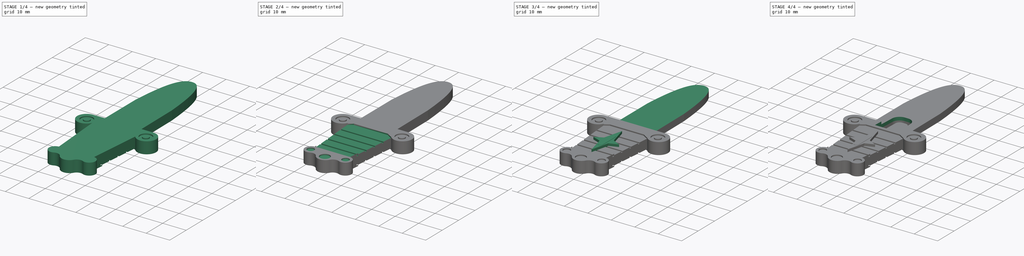
[diagram: build sequence overview — one tinted view per stage of 4, left to right]
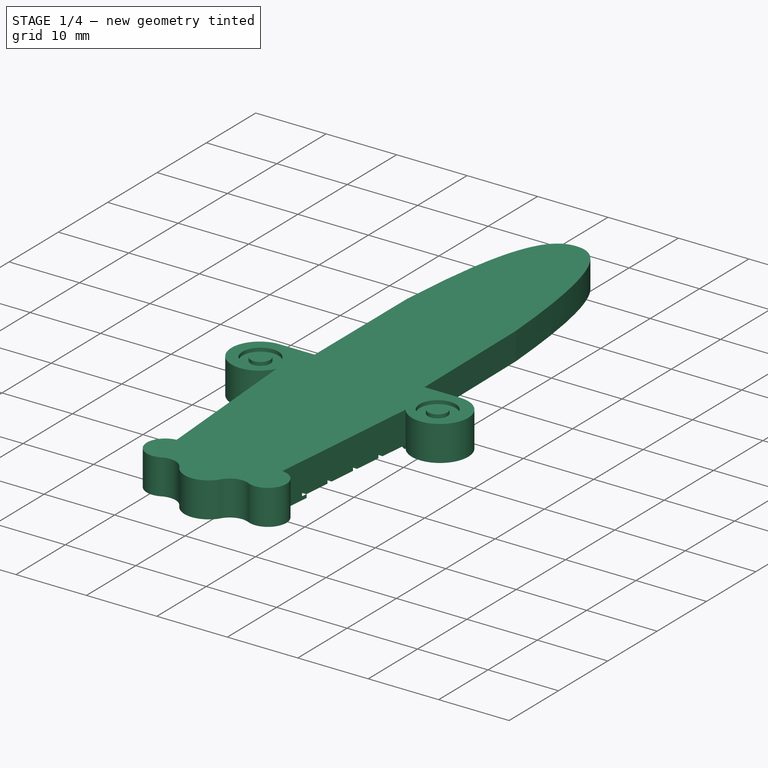
[diagram: stage 1 of 4 — iso view after this stage's code; geometry added in this stage tinted green]
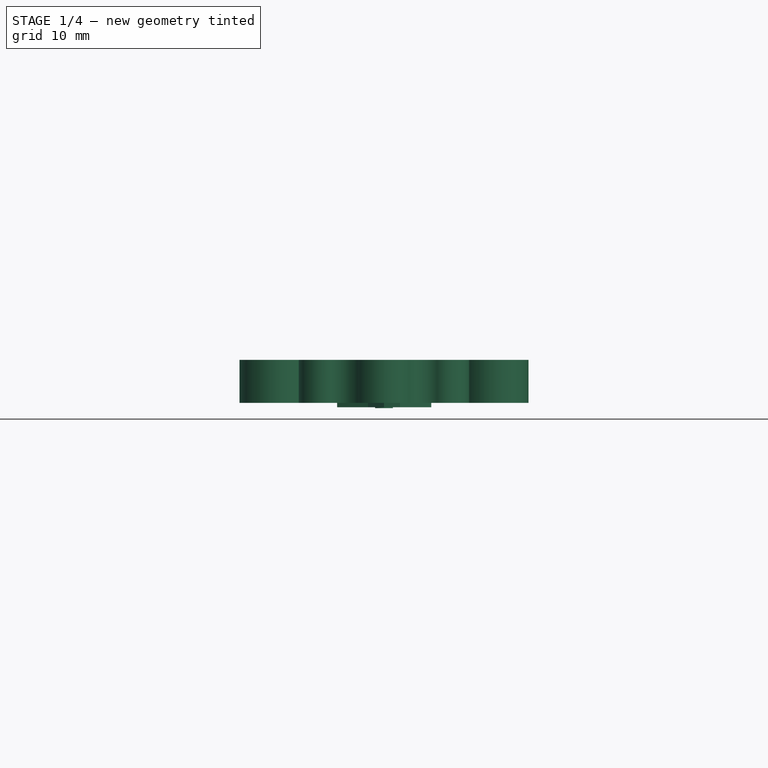
[diagram: stage 1 of 4 — front view after this stage's code; geometry added in this stage tinted green]
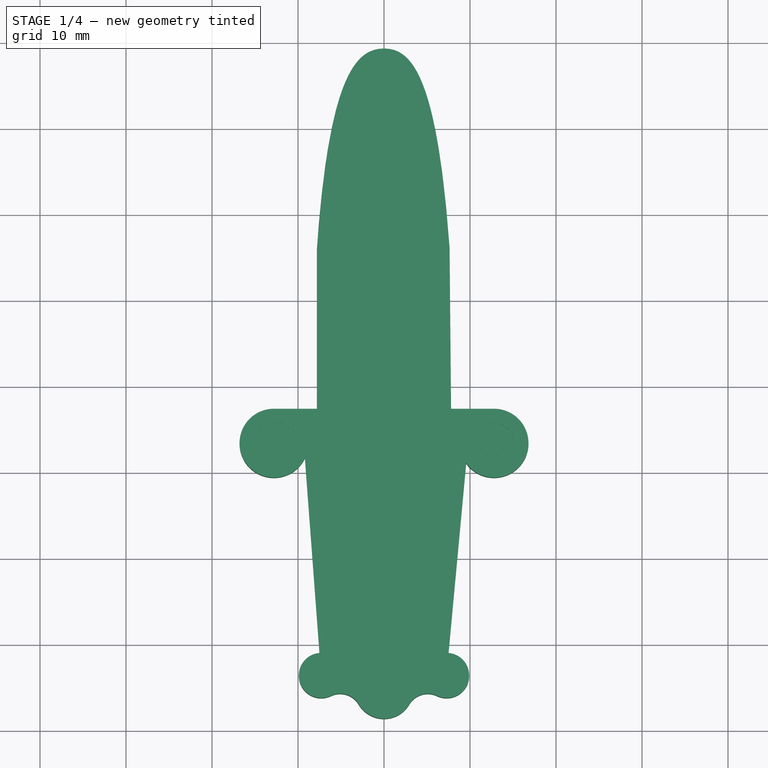
[diagram: stage 1 of 4 — top view after this stage's code; geometry added in this stage tinted green]
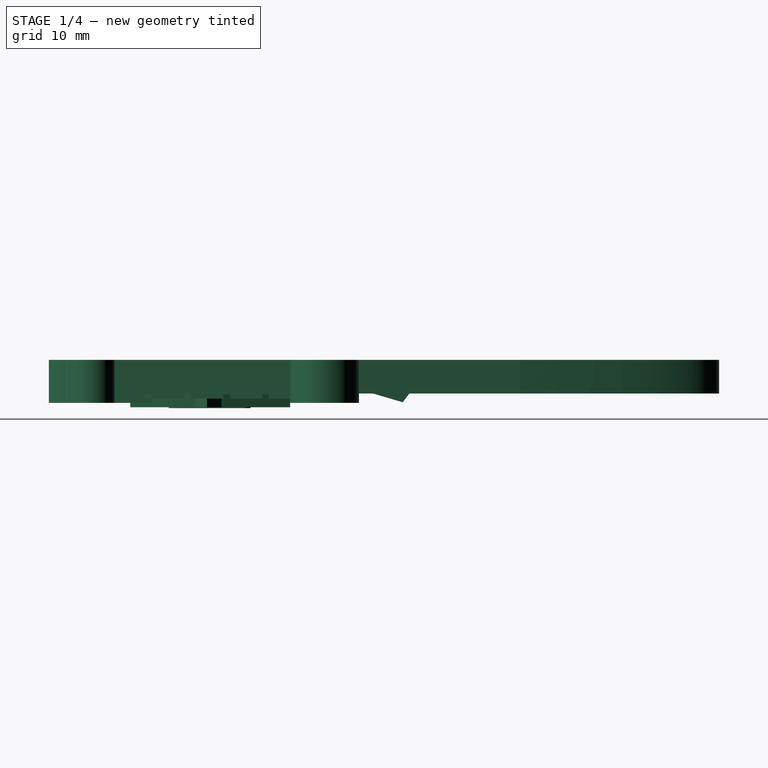
[diagram: stage 1 of 4 — right view after this stage's code; geometry added in this stage tinted green]
FCSTD DOCUMENT  (FreeCAD 0.19R22262 (Git))
Label: popup_pirate_schwert_fixed
License: All rights reserved
LicenseURL: http://en.wikipedia.org/wiki/All_rights_reserved
objects: Sketcher::SketchObject×12, PartDesign::Pocket×8, PartDesign::Pad×4, PartDesign::Mirrored×1, PartDesign::Body×1, Part::Mirroring×1
note: 39 computed .brp shape members not serialized (recipe doc carries the construction recipe); baked Part::Feature solids carry a one-line shape summary decoded from their .brp

FEATURE [Sketcher::SketchObject] Sketch011
  MapMode = 5
  Support = -> [XY_Plane]
  sketch-geometry (12):
    g0: LineSegment StartX=-4.35796 StartY=-6.2312 StartZ=0 EndX=-2.72986 EndY=-6.2312 EndZ=0
    g1: LineSegment StartX=-2.72986 StartY=-6.2312 StartZ=0 EndX=-2.39669 EndY=3.53239 EndZ=0
    g2: ArcOfCircle CenterX=-0.672304 CenterY=3.4597 CenterZ=0 NormalX=0 NormalY=0 NormalZ=1 AngleXU=0 Radius=1.72592 StartAngle=1.5708 EndAngle=3.09946
    g3: LineSegment StartX=-0.672304 StartY=5.18562 StartZ=0 EndX=0.672304 EndY=5.18562 EndZ=0
    g4: ArcOfCircle CenterX=0.672304 CenterY=3.4597 CenterZ=0 NormalX=0 NormalY=0 NormalZ=1 AngleXU=0 Radius=1.72592 StartAngle=0.0421305 EndAngle=1.5708
    g5: LineSegment StartX=2.39669 StartY=3.53239 StartZ=0 EndX=2.72986 EndY=-6.2312 EndZ=0
    g6: LineSegment StartX=2.72986 StartY=-6.2312 StartZ=0 EndX=4.35796 EndY=-6.2312 EndZ=0
    g7: LineSegment StartX=4.35796 StartY=-6.2312 StartZ=0 EndX=3.92299 EndY=3.78181 EndZ=0
    g8: ArcOfCircle CenterX=0.672304 CenterY=3.4597 CenterZ=0 NormalX=0 NormalY=0 NormalZ=1 AngleXU=0 Radius=3.2666 StartAngle=0.0987685 EndAngle=1.5708
    g9: LineSegment StartX=0.672304 StartY=6.7263 StartZ=0 EndX=-0.672304 EndY=6.7263 EndZ=0
    g10: ArcOfCircle CenterX=-0.672304 CenterY=3.4597 CenterZ=0 NormalX=0 NormalY=0 NormalZ=1 AngleXU=0 Radius=3.2666 StartAngle=1.5708 EndAngle=3.04282
    g11: LineSegment StartX=-3.92299 StartY=3.78181 StartZ=0 EndX=-4.35796 EndY=-6.2312 EndZ=0
  constraints (23):
    c: Horizontal(g0)
    c: Coincident(g0,g1)
    c: Coincident(g2,g3)
    c: Tangent(g3,g4) = 1.5708
    c: Coincident(g4,g5)
    c: Coincident(g5,g6)
    c: Horizontal(g6)
    c: Coincident(g6,g7)
    c: Tangent(g8,g9) = -1.5708
    c: Tangent(g9,g10) = -1.5708
    c: Coincident(g10,g11)
    c: Coincident(g11,g0)
    c: Symmetric(g2,g3,g-2)
    c: Coincident(g2,g10)
    c: Coincident(g4,g8)
    c: Horizontal(g4,g2)
    c: Symmetric(g0,g5,g-2)
    c: Equal(g6,g0)
    c: Symmetric(g8,g9,g-2)
    c: Horizontal(g1,g4)
    c: Coincident(g8,g7)
    c: Horizontal(g10,g7)
    c: Coincident(g1,g2)
FEATURE [Sketcher::SketchObject] Sketch
  MapMode = 5
  Support = -> [XY_Plane]
  sketch-geometry (22):
    g0: LineSegment StartX=-7.8 StartY=16.0264 StartZ=0 EndX=-7.8 EndY=-2.6 EndZ=0
    g1: LineSegment StartX=-7.8 StartY=-2.6 StartZ=0 EndX=-12.8 EndY=-2.6 EndZ=0
    g2: ArcOfCircle CenterX=-12.8 CenterY=-6.6 CenterZ=0 NormalX=0 NormalY=0 NormalZ=1 AngleXU=0 Radius=4 StartAngle=1.5708 EndAngle=5.83363
    g3: LineSegment StartX=-9.19744 StartY=-8.33826 StartZ=0 EndX=-7.5 EndY=-31 EndZ=0
    g4: ArcOfCircle CenterX=-7.29 CenterY=-33.61 CenterZ=0 NormalX=0 NormalY=0 NormalZ=1 AngleXU=0 Radius=2.61843 StartAngle=1.65108 EndAngle=5.155
    g5: ArcOfCircle CenterX=-5.09701 CenterY=-38.2368 CenterZ=0 NormalX=0 NormalY=0 NormalZ=1 AngleXU=0 Radius=2.50177 StartAngle=0.535444 EndAngle=2.01341
    g6: ArcOfCircle CenterX=1e-15 CenterY=-35.213 CenterZ=0 NormalX=0 NormalY=0 NormalZ=1 AngleXU=0 Radius=3.42469 StartAngle=3.67704 EndAngle=5.74774
    g7: ArcOfCircle CenterX=5.09701 CenterY=-38.2368 CenterZ=0 NormalX=0 NormalY=0 NormalZ=1 AngleXU=0 Radius=2.50177 StartAngle=1.12819 EndAngle=2.60615
    g8: ArcOfCircle CenterX=7.29 CenterY=-33.61 CenterZ=0 NormalX=0 NormalY=0 NormalZ=1 AngleXU=0 Radius=2.61843 StartAngle=4.26978 EndAngle=7.77369
    g9: LineSegment StartX=7.5 StartY=-31 StartZ=0 EndX=9.55432 EndY=-8.93787 EndZ=0
    g10: ArcOfCircle CenterX=12.8 CenterY=-6.6 CenterZ=0 NormalX=0 NormalY=0 NormalZ=1 AngleXU=0 Radius=4.00001 StartAngle=3.76582 EndAngle=7.85234
    g11: LineSegment StartX=12.8066 StartY=-2.6 StartZ=0 EndX=7.8 EndY=-2.6 EndZ=0
    g12: LineSegment StartX=7.8 StartY=-2.6 StartZ=0 EndX=7.62305 EndY=16.1465 EndZ=0
    g13-g17: Circle [constr] x5 (B-spline internal-alignment scaffolding for g18; pole/knot coordinates omitted)
    g18: BSplineCurve PolesCount=5 KnotsCount=3 Degree=3 IsPeriodic=0
    g19: GeomPoint [constr] X=-7.8 Y=16.0264 Z=0
    g20: GeomPoint [constr] X=-0.0123748 Y=39.288 Z=0
    g21: GeomPoint [constr] X=7.62305 Y=16.1465 Z=0
  constraints (40):
    c: Vertical(g0)
    c: Coincident(g0,g1)
    c: Tangent(g1,g2) = -1.5708
    c: Coincident(g2,g3)
    c: Tangent(g4,g5) = 1.5708
    c: Tangent(g5,g6) = 1.5708
    c: Tangent(g6,g7) = 1.5708
    c: Coincident(g8,g9)
    c: Coincident(g10,g11)
    c: Horizontal(g11)
    c: Coincident(g11,g12)
    c: Coincident(g10,g9)
    c: Radius(g2) = 4
    c: DistanceX(g1,g1) = 5
    c: DistanceX(g0) = -7.8
    c: DistanceY(g0) = -2.6
    c: Symmetric(g11,g0,g-2)
    c: DistanceY(g2) = -6.6
    c: Symmetric(g10,g2,g-2)
    c: Coincident(g4,g3)
    c: DistanceX(g3) = -7.5
    c: DistanceY(g3) = -31
    c: Symmetric(g3,g8,g-2)
    c: Symmetric(g4,g8,g-2)
    c: DistanceY(g4) = -33.61
    c: DistanceX(g4) = -7.29
    c: DistanceX(g4) = -6.16852
    c: DistanceX(g5) = -2.94538
    c: DistanceY(g5) = -36.9603
    c: Symmetric(g5,g6,g-2)
    c: Coincident(g7,g8)
    c: Horizontal(g7,g4)
    c: Coincident(g18,g0)
    c: Radius(g13) = 3
    c: Equal(g13, g14-g17) x4
    c: Coincident(g18,g12)
    c: InternalAlignment(g13-g17 -> g18) x5
    c: InternalAlignment(g19,g18)
    c: InternalAlignment(g20,g18)
    c: InternalAlignment(g21,g18)
FEATURE [PartDesign::Pad] Pad
  Length = 2.5
  Length2 = 100
  Profile = -> Sketch
  Refine = true
  Type = 0
FEATURE [Sketcher::SketchObject] Sketch001
  MapMode = 5
  Placement = pos=(0,0,2.5) rot=(0,0,1;0rad)
  Support = -> [Pad]
  sketch-geometry (2):
    g0: Circle CenterX=-12.5753 CenterY=-6.74956 CenterZ=0 NormalX=0 NormalY=0 NormalZ=1 AngleXU=0 Radius=1.37523
    g1: Circle CenterX=-12.5753 CenterY=-6.74956 CenterZ=0 NormalX=0 NormalY=0 NormalZ=1 AngleXU=0 Radius=2.55544
  constraints (1):
    c: Coincident(g1,g0)
FEATURE [Sketcher::SketchObject] Sketch008
  MapMode = 5
  Support = -> [XY_Plane]
  sketch-geometry (12):
    g0: LineSegment StartX=-4.35796 StartY=-6.2312 StartZ=0 EndX=-2.72986 EndY=-6.2312 EndZ=0
    g1: LineSegment StartX=-2.72986 StartY=-6.2312 StartZ=0 EndX=-2.39669 EndY=3.53239 EndZ=0
    g2: ArcOfCircle CenterX=-0.672304 CenterY=3.4597 CenterZ=0 NormalX=0 NormalY=0 NormalZ=1 AngleXU=0 Radius=1.72592 StartAngle=1.5708 EndAngle=3.09946
    g3: LineSegment StartX=-0.672304 StartY=5.18562 StartZ=0 EndX=0.672304 EndY=5.18562 EndZ=0
    g4: ArcOfCircle CenterX=0.672304 CenterY=3.4597 CenterZ=0 NormalX=0 NormalY=0 NormalZ=1 AngleXU=0 Radius=1.72592 StartAngle=0.0421305 EndAngle=1.5708
    g5: LineSegment StartX=2.39669 StartY=3.53239 StartZ=0 EndX=2.72986 EndY=-6.2312 EndZ=0
    g6: LineSegment StartX=2.72986 StartY=-6.2312 StartZ=0 EndX=4.35796 EndY=-6.2312 EndZ=0
    g7: LineSegment StartX=4.35796 StartY=-6.2312 StartZ=0 EndX=3.92299 EndY=3.78181 EndZ=0
    g8: ArcOfCircle CenterX=0.672304 CenterY=3.4597 CenterZ=0 NormalX=0 NormalY=0 NormalZ=1 AngleXU=0 Radius=3.2666 StartAngle=0.0987685 EndAngle=1.5708
    g9: LineSegment StartX=0.672304 StartY=6.7263 StartZ=0 EndX=-0.672304 EndY=6.7263 EndZ=0
    g10: ArcOfCircle CenterX=-0.672304 CenterY=3.4597 CenterZ=0 NormalX=0 NormalY=0 NormalZ=1 AngleXU=0 Radius=3.2666 StartAngle=1.5708 EndAngle=3.04282
    g11: LineSegment StartX=-3.92299 StartY=3.78181 StartZ=0 EndX=-4.35796 EndY=-6.2312 EndZ=0
  constraints (23):
    c: Horizontal(g0)
    c: Coincident(g0,g1)
    c: Coincident(g2,g3)
    c: Tangent(g3,g4) = 1.5708
    c: Coincident(g4,g5)
    c: Coincident(g5,g6)
    c: Horizontal(g6)
    c: Coincident(g6,g7)
    c: Tangent(g8,g9) = -1.5708
    c: Tangent(g9,g10) = -1.5708
    c: Coincident(g10,g11)
    c: Coincident(g11,g0)
    c: Symmetric(g2,g3,g-2)
    c: Coincident(g2,g10)
    c: Coincident(g4,g8)
    c: Horizontal(g4,g2)
    c: Symmetric(g0,g5,g-2)
    c: Equal(g6,g0)
    c: Symmetric(g8,g9,g-2)
    c: Horizontal(g1,g4)
    c: Coincident(g8,g7)
    c: Horizontal(g10,g7)
    c: Coincident(g1,g2)
FEATURE [Sketcher::SketchObject] Sketch005
  MapMode = 5
  Support = -> [XY_Plane]
  sketch-geometry (8):
    g0: LineSegment StartX=0 StartY=-10.5964 StartZ=0 EndX=-2.09096 EndY=-18.5736 EndZ=0
    g1: LineSegment StartX=-2.09096 StartY=-18.5736 StartZ=0 EndX=-5.45014 EndY=-20.2528 EndZ=0
    g2: LineSegment StartX=-5.45014 StartY=-20.2528 StartZ=0 EndX=-1.85935 EndY=-21.6208 EndZ=0
    g3: LineSegment StartX=-1.85935 StartY=-21.6208 StartZ=0 EndX=0 EndY=-29.1851 EndZ=0
    g4: LineSegment StartX=0 StartY=-29.1851 StartZ=0 EndX=1.85935 EndY=-21.6208 EndZ=0
    g5: LineSegment StartX=1.85935 StartY=-21.6208 StartZ=0 EndX=5.49387 EndY=-20.2528 EndZ=0
    g6: LineSegment StartX=5.49387 StartY=-20.2528 StartZ=0 EndX=2.09096 EndY=-18.5736 EndZ=0
    g7: LineSegment StartX=2.09096 StartY=-18.5736 StartZ=0 EndX=0 EndY=-10.5964 EndZ=0
  constraints (13):
    c: PointOnObject(g0,g-2)
    c: Coincident(g0,g1)
    c: Coincident(g1,g2)
    c: Coincident(g2,g3)
    c: PointOnObject(g3,g-2)
    c: Coincident(g3,g4)
    c: Coincident(g4,g5)
    c: Coincident(g5,g6)
    c: Coincident(g6,g7)
    c: Coincident(g7,g0)
    c: Horizontal(g1,g5)
    c: Symmetric(g0,g6,g-2)
    c: Symmetric(g2,g4,g-2)
FEATURE [Sketcher::SketchObject] Sketch010
  MapMode = 5
  Placement = pos=(0,0,0) rot=(0.57735,0.57735,0.57735;2.0944rad)
  Support = -> [YZ_Plane]
  sketch-geometry (3):
    g0: LineSegment StartX=-5.76665 StartY=0 StartZ=0 EndX=2.50139 EndY=2.42114 EndZ=0
    g1: LineSegment StartX=2.50139 StartY=2.42114 StartZ=0 EndX=4.35371 EndY=0 EndZ=0
    g2: LineSegment StartX=4.35371 StartY=0 StartZ=0 EndX=-5.76665 EndY=0 EndZ=0
  constraints (5):
    c: PointOnObject(g0,g-1)
    c: Coincident(g0,g1)
    c: PointOnObject(g1,g-1)
    c: Coincident(g1,g2)
    c: Coincident(g2,g0)
FEATURE [PartDesign::Pocket] Pocket
  BaseFeature = -> Pad
  Length = 0.5
  Length2 = 100
  Profile = -> Sketch001
  Refine = true
  Type = 0
FEATURE [PartDesign::Mirrored] Mirrored
  BaseFeature = -> Pocket
  MirrorPlane = -> Sketch001 [V_Axis]
  Originals = -> [Pocket]
  Refine = true
FEATURE [PartDesign::Body] Body
  Group = -> [Sketch,Pad,Sketch001,Pocket,Mirrored,Sketch002,Pocket001,Sketch003,Pocket002,Sketch004,Pocket003,Sketch005,Pad001,Sketch006,Pad002,Sketch007,Pocket004,Sketch008,Pocket005,Pad003,Sketch010,Sketch011,Pocket006,Sketch012,Pocket007]
  Origin = -> Origin
  Tip = -> Pocket007
FEATURE [Part::Mirroring] Part__Mirroring  label="Pocket006 (Mirror #1)"
  Base = (0,0,0)
  Normal = (0,0,1)
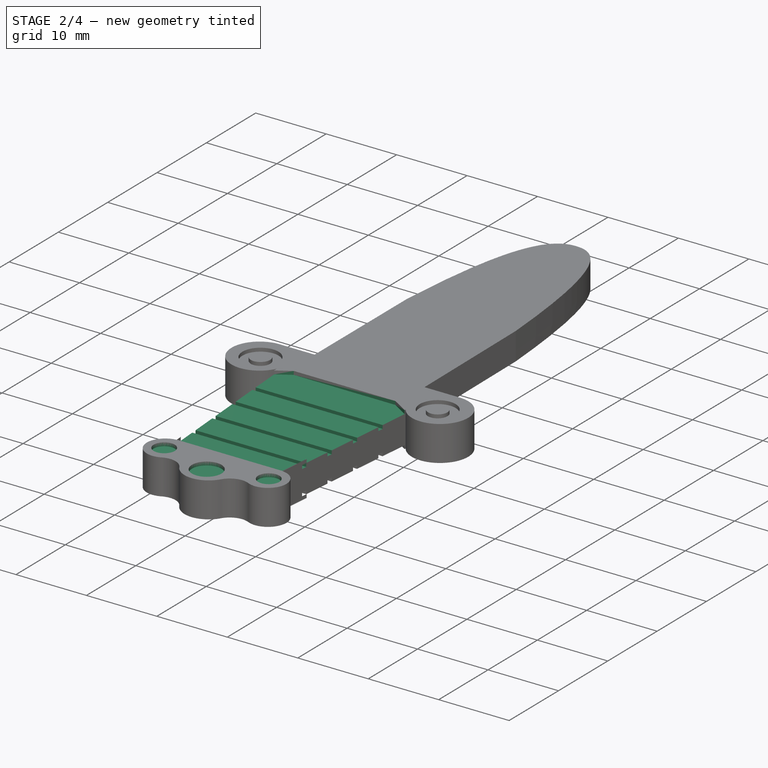
[diagram: stage 2 of 4 — iso view after this stage's code; geometry added in this stage tinted green]
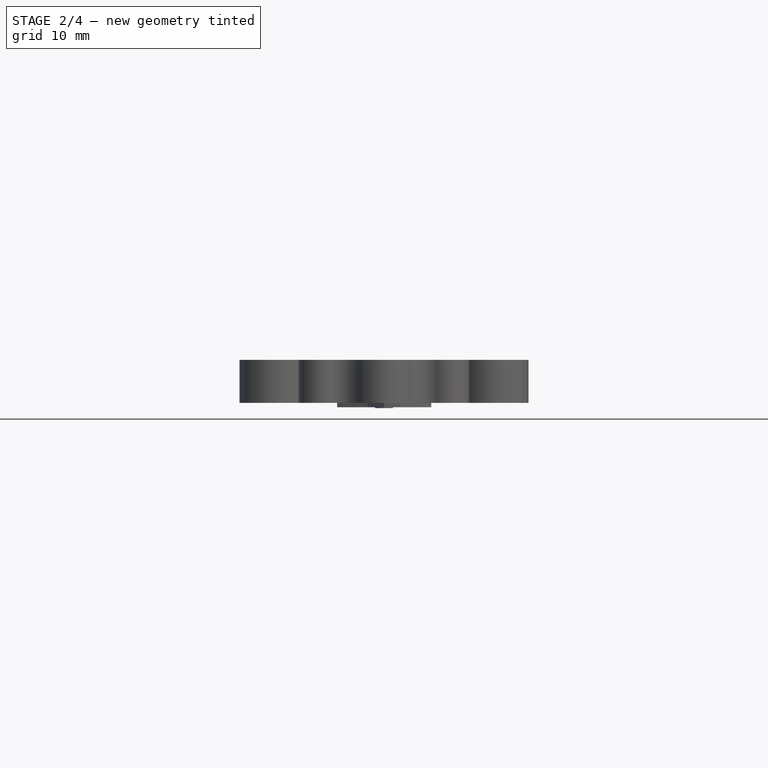
[diagram: stage 2 of 4 — front view after this stage's code; geometry added in this stage tinted green]
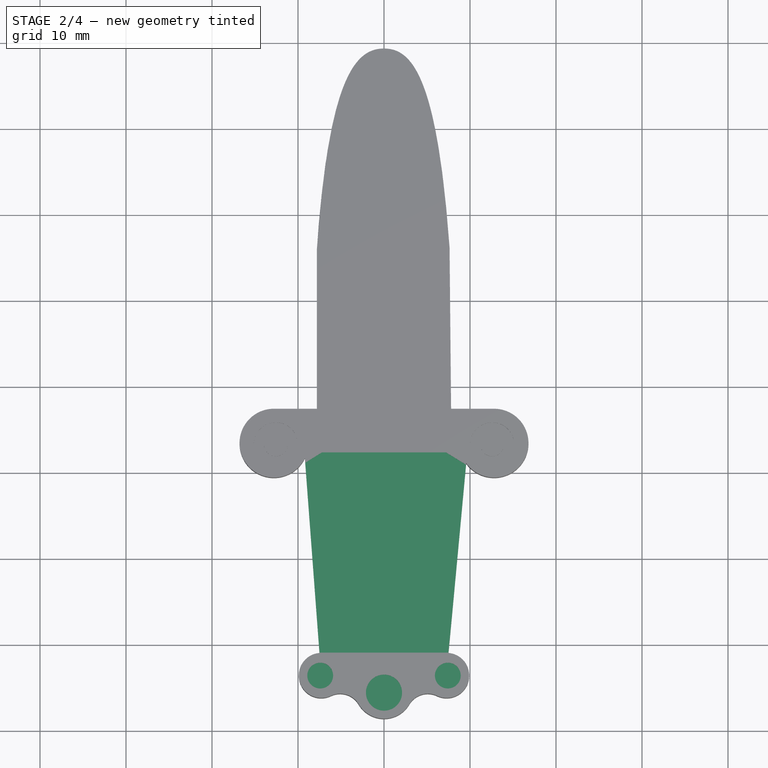
[diagram: stage 2 of 4 — top view after this stage's code; geometry added in this stage tinted green]
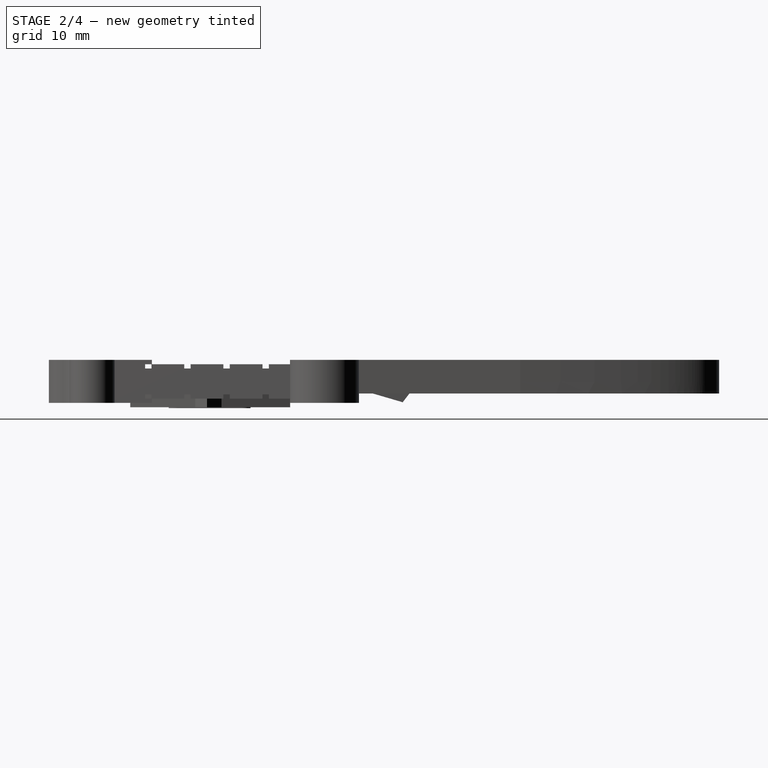
[diagram: stage 2 of 4 — right view after this stage's code; geometry added in this stage tinted green]
FEATURE [Sketcher::SketchObject] Sketch002
  MapMode = 5
  Placement = pos=(0,0,2.5) rot=(0,0,1;0rad)
  Support = -> [Mirrored]
  sketch-geometry (6):
    g0: LineSegment StartX=-7.20854 StartY=-7.67003 StartZ=0 EndX=7.20854 EndY=-7.67003 EndZ=0
    g1: LineSegment StartX=7.20854 StartY=-7.67003 StartZ=0 EndX=9.62007 EndY=-9.15686 EndZ=0
    g2: LineSegment StartX=9.62007 StartY=-9.15686 StartZ=0 EndX=7.48256 EndY=-30.96 EndZ=0
    g3: LineSegment StartX=7.48256 StartY=-30.96 StartZ=0 EndX=-7.48256 EndY=-30.96 EndZ=0
    g4: LineSegment StartX=-7.48256 StartY=-30.96 StartZ=0 EndX=-9.62007 EndY=-9.15686 EndZ=0
    g5: LineSegment StartX=-9.62007 StartY=-9.15686 StartZ=0 EndX=-7.20854 EndY=-7.67003 EndZ=0
  constraints (9):
    c: Coincident(g0,g1)
    c: Coincident(g1,g2)
    c: Coincident(g2,g3)
    c: Coincident(g3,g4)
    c: Coincident(g4,g5)
    c: Coincident(g5,g0)
    c: Symmetric(g0,g0,g-2)
    c: Symmetric(g2,g3,g-2)
    c: Symmetric(g1,g4,g-2)
FEATURE [PartDesign::Pocket] Pocket001
  BaseFeature = -> Mirrored
  Length = 0.5
  Length2 = 100
  Profile = -> Sketch002
  Refine = true
  Type = 0
FEATURE [Sketcher::SketchObject] Sketch003
  MapMode = 5
  Placement = pos=(0,0,2.5) rot=(0,0,1;0rad)
  Support = -> [Pocket001]
  sketch-geometry (3):
    g0: Circle CenterX=-7.41767 CenterY=-33.6321 CenterZ=0 NormalX=0 NormalY=0 NormalZ=1 AngleXU=0 Radius=1.5
    g1: Circle CenterX=0 CenterY=-35.6155 CenterZ=0 NormalX=0 NormalY=0 NormalZ=1 AngleXU=0 Radius=2.09927
    g2: Circle CenterX=7.41767 CenterY=-33.6321 CenterZ=0 NormalX=0 NormalY=0 NormalZ=1 AngleXU=0 Radius=1.5
  constraints (4):
    c: PointOnObject(g1,g-2)
    c: Radius(g0) = 1.5
    c: Symmetric(g2,g0,g-2)
    c: Equal(g0,g2)
FEATURE [PartDesign::Pocket] Pocket002
  BaseFeature = -> Pocket001
  Length = 0.5
  Length2 = 100
  Profile = -> Sketch003
  Refine = true
  Type = 0
FEATURE [Sketcher::SketchObject] Sketch004
  MapMode = 5
  Placement = pos=(0,0,2) rot=(0,0,1;0rad)
  Support = -> [Pocket002]
  sketch-geometry (16):
    g0: LineSegment StartX=-11.8878 StartY=-13.056 StartZ=0 EndX=13.7911 EndY=-13.056 EndZ=0
    g1: LineSegment StartX=13.7911 StartY=-13.056 StartZ=0 EndX=13.7911 EndY=-13.806 EndZ=0
    g2: LineSegment StartX=13.7911 StartY=-13.806 StartZ=0 EndX=-11.8878 EndY=-13.806 EndZ=0
    g3: LineSegment StartX=-11.8878 StartY=-13.806 StartZ=0 EndX=-11.8878 EndY=-13.056 EndZ=0
    g4: LineSegment StartX=-14.7043 StartY=-17.606 StartZ=0 EndX=16.0412 EndY=-17.606 EndZ=0
    g5: LineSegment StartX=16.0412 StartY=-17.606 StartZ=0 EndX=16.0412 EndY=-18.356 EndZ=0
    g6: LineSegment StartX=16.0412 StartY=-18.356 StartZ=0 EndX=-14.7043 EndY=-18.356 EndZ=0
    g7: LineSegment StartX=-14.7043 StartY=-18.356 StartZ=0 EndX=-14.7043 EndY=-17.606 EndZ=0
    g8: LineSegment StartX=-14.3019 StartY=-22.156 StartZ=0 EndX=14.748 EndY=-22.156 EndZ=0
    g9: LineSegment StartX=14.748 StartY=-22.156 StartZ=0 EndX=14.748 EndY=-22.906 EndZ=0
    g10: LineSegment StartX=14.748 StartY=-22.906 StartZ=0 EndX=-14.3019 EndY=-22.906 EndZ=0
    g11: LineSegment StartX=-14.3019 StartY=-22.906 StartZ=0 EndX=-14.3019 EndY=-22.156 EndZ=0
    g12: LineSegment StartX=-15.2676 StartY=-26.706 StartZ=0 EndX=15.3917 EndY=-26.706 EndZ=0
    g13: LineSegment StartX=15.3917 StartY=-26.706 StartZ=0 EndX=15.3917 EndY=-27.456 EndZ=0
    g14: LineSegment StartX=15.3917 StartY=-27.456 StartZ=0 EndX=-15.2676 EndY=-27.456 EndZ=0
    g15: LineSegment StartX=-15.2676 StartY=-27.456 StartZ=0 EndX=-15.2676 EndY=-26.706 EndZ=0
  constraints (39):
    c: Coincident(g0,g1)
    c: Coincident(g1,g2)
    c: Coincident(g2,g3)
    c: Coincident(g3,g0)
    c: Horizontal(g0)
    c: Horizontal(g2)
    c: Vertical(g1)
    c: Vertical(g3)
    c: Coincident(g4,g5)
    c: Coincident(g5,g6)
    c: Coincident(g6,g7)
    c: Coincident(g7,g4)
    c: Horizontal(g4)
    c: Horizontal(g6)
    c: Vertical(g5)
    c: Vertical(g7)
    c: Coincident(g8,g9)
    c: Coincident(g9,g10)
    c: Coincident(g10,g11)
    c: Coincident(g11,g8)
    c: Horizontal(g8)
    c: Horizontal(g10)
    c: Vertical(g9)
    c: Vertical(g11)
    c: Coincident(g12,g13)
    c: Coincident(g13,g14)
    c: Coincident(g14,g15)
    c: Coincident(g15,g12)
    c: Horizontal(g12)
    c: Horizontal(g14)
    c: Vertical(g13)
    c: Vertical(g15)
    c: Equal(g1,g5)
    c: Equal(g9,g13)
    c: Equal(g9,g5)
    c: DistanceY(g3,g3) = 0.75
    c: DistanceY(g4,g1) = 3.8
    c: DistanceY(g8,g6) = 3.8
    c: DistanceY(g12,g10) = 3.8
FEATURE [PartDesign::Pocket] Pocket003
  BaseFeature = -> Pocket002
  Length = 0.5
  Length2 = 100
  Profile = -> Sketch004
  Refine = true
  Type = 0
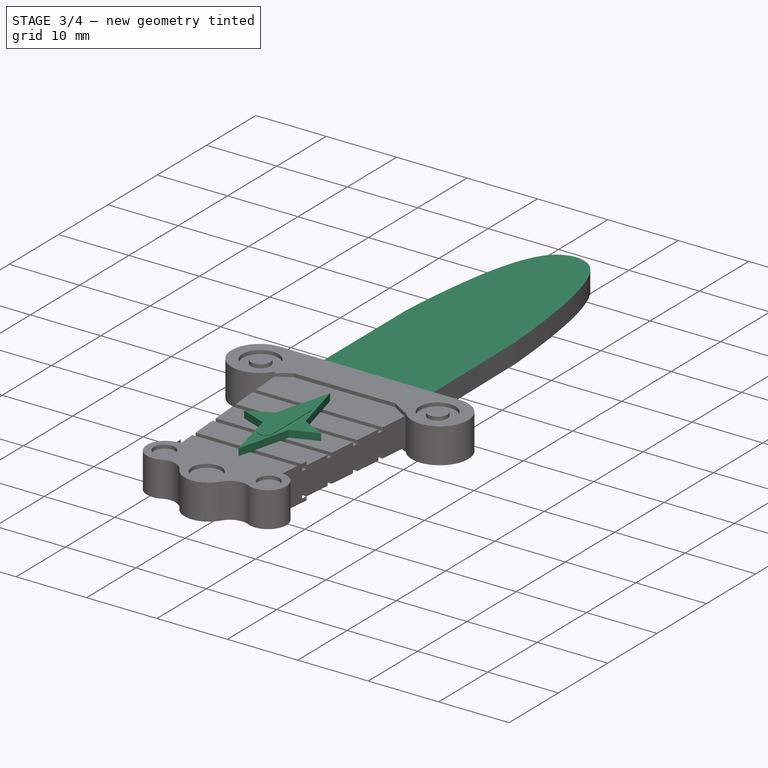
[diagram: stage 3 of 4 — iso view after this stage's code; geometry added in this stage tinted green]
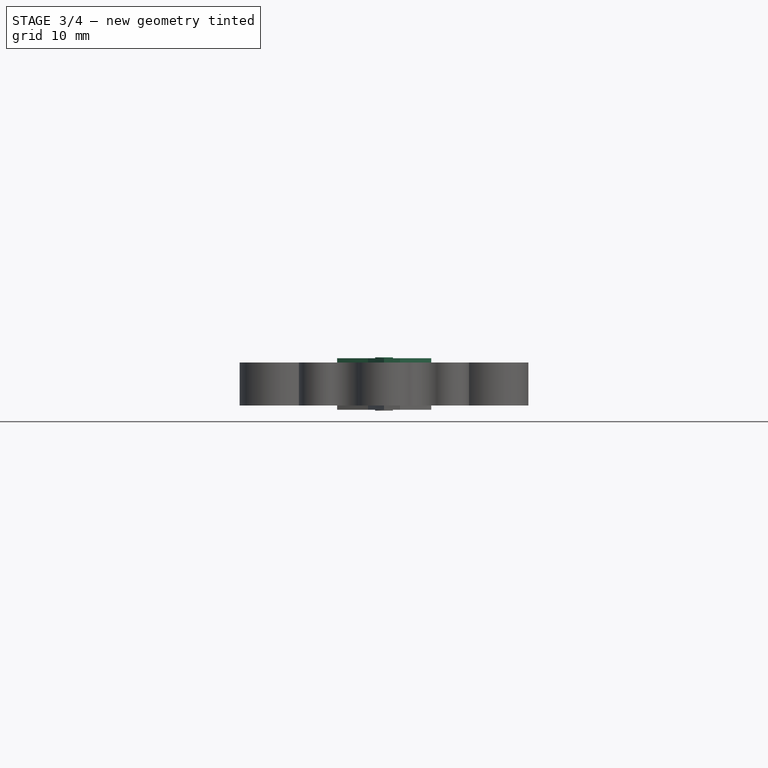
[diagram: stage 3 of 4 — front view after this stage's code; geometry added in this stage tinted green]
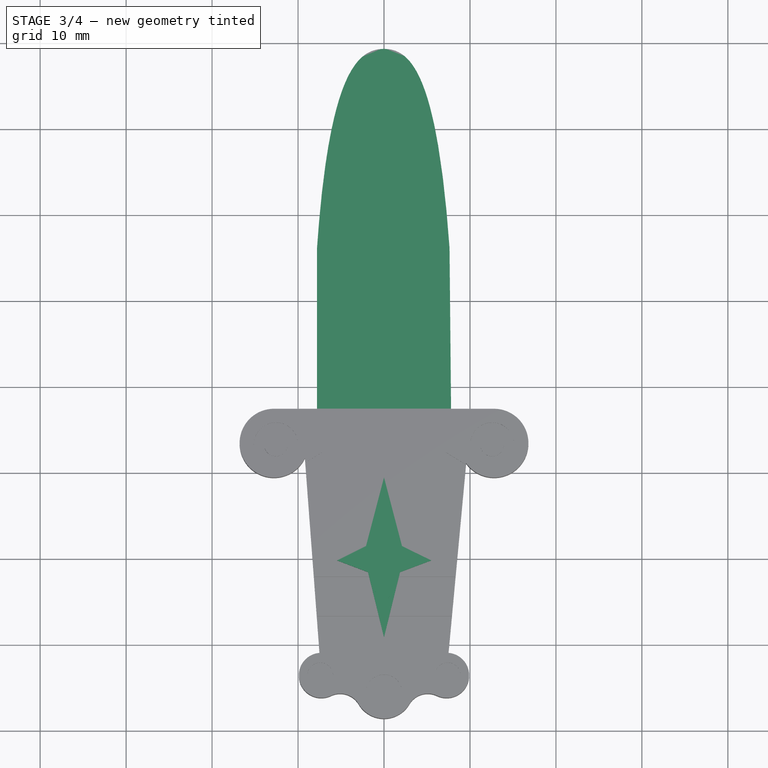
[diagram: stage 3 of 4 — top view after this stage's code; geometry added in this stage tinted green]
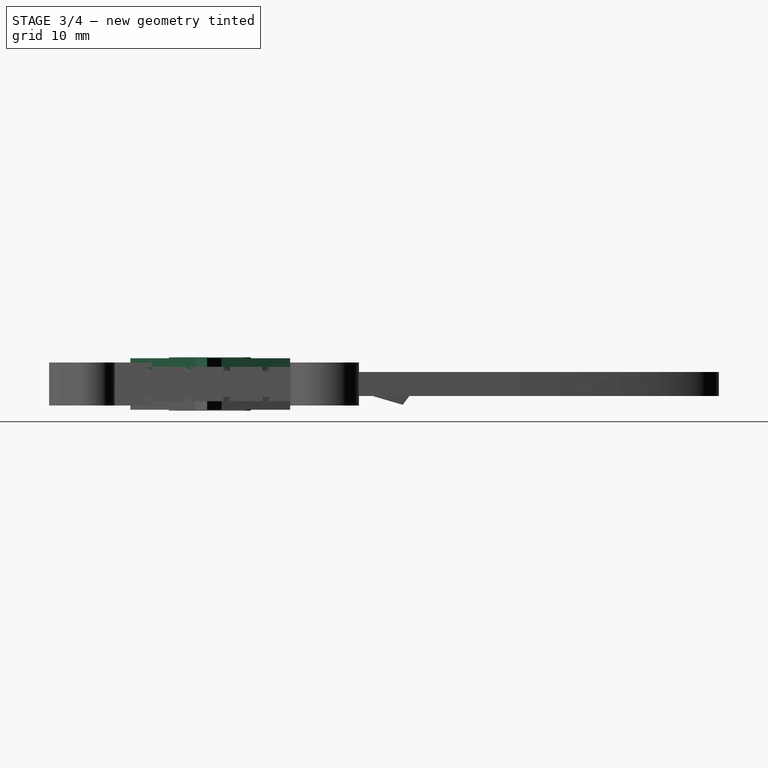
[diagram: stage 3 of 4 — right view after this stage's code; geometry added in this stage tinted green]
FEATURE [PartDesign::Pad] Pad001
  BaseFeature = -> Pocket003
  Length = 3
  Length2 = 100
  Profile = -> Sketch005
  Refine = true
  Type = 0
FEATURE [Sketcher::SketchObject] Sketch006
  MapMode = 5
  Placement = pos=(0,0,2.5) rot=(0,0,1;0rad)
  Support = -> [Pad001]
  sketch-geometry (4):
    g0: ArcOfCircle CenterX=0 CenterY=-16.2083 CenterZ=0 NormalX=0 NormalY=0 NormalZ=1 AngleXU=0 Radius=1.0315 StartAngle=1.6e-15 EndAngle=3.14159
    g1: ArcOfCircle CenterX=0 CenterY=-23.6733 CenterZ=0 NormalX=0 NormalY=0 NormalZ=1 AngleXU=0 Radius=1.0315 StartAngle=3.14159 EndAngle=6.28319
    g2: LineSegment StartX=-1.0315 StartY=-16.2083 StartZ=0 EndX=-1.0315 EndY=-23.6733 EndZ=0
    g3: LineSegment StartX=1.0315 StartY=-16.2083 StartZ=0 EndX=1.0315 EndY=-23.6733 EndZ=0
  constraints (7):
    c: Tangent(g0,g3)
    c: Tangent(g0,g2)
    c: Tangent(g2,g1)
    c: Tangent(g3,g1)
    c: Vertical(g2)
    c: Equal(g0,g1)
    c: PointOnObject(g0,g-2)
FEATURE [PartDesign::Pad] Pad002
  BaseFeature = -> Pad001
  Length = 0.6
  Length2 = 100
  Profile = -> Sketch006
  Refine = true
  Type = 0
FEATURE [Sketcher::SketchObject] Sketch007
  MapMode = 5
  Placement = pos=(0,0,2.5) rot=(0,0,1;0rad)
  Support = -> [Pad002]
  sketch-geometry (4):
    g0: LineSegment StartX=-30.0129 StartY=48.1364 StartZ=0 EndX=48.0706 EndY=48.1364 EndZ=0
    g1: LineSegment StartX=48.0706 StartY=48.1364 StartZ=0 EndX=48.0706 EndY=-2.58303 EndZ=0
    g2: LineSegment StartX=48.0706 StartY=-2.58303 StartZ=0 EndX=-30.0129 EndY=-2.58303 EndZ=0
    g3: LineSegment StartX=-30.0129 StartY=-2.58303 StartZ=0 EndX=-30.0129 EndY=48.1364 EndZ=0
  constraints (8):
    c: Coincident(g0,g1)
    c: Coincident(g1,g2)
    c: Coincident(g2,g3)
    c: Coincident(g3,g0)
    c: Horizontal(g0)
    c: Horizontal(g2)
    c: Vertical(g1)
    c: Vertical(g3)
FEATURE [PartDesign::Pocket] Pocket004
  BaseFeature = -> Pad002
  Length = 1.1
  Length2 = 100
  Profile = -> Sketch007
  Refine = true
  Type = 0
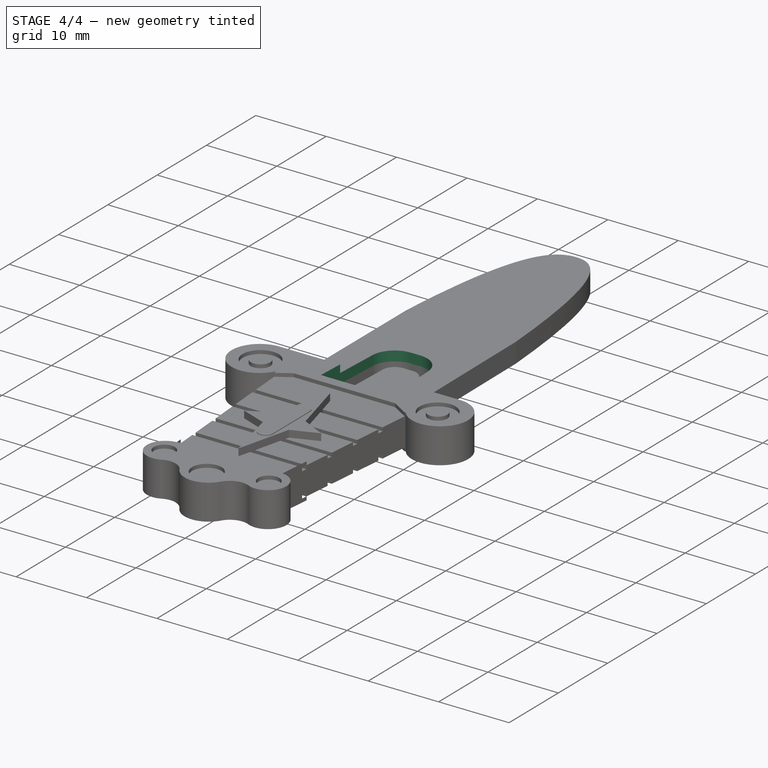
[diagram: stage 4 of 4 — iso view after this stage's code; geometry added in this stage tinted green]
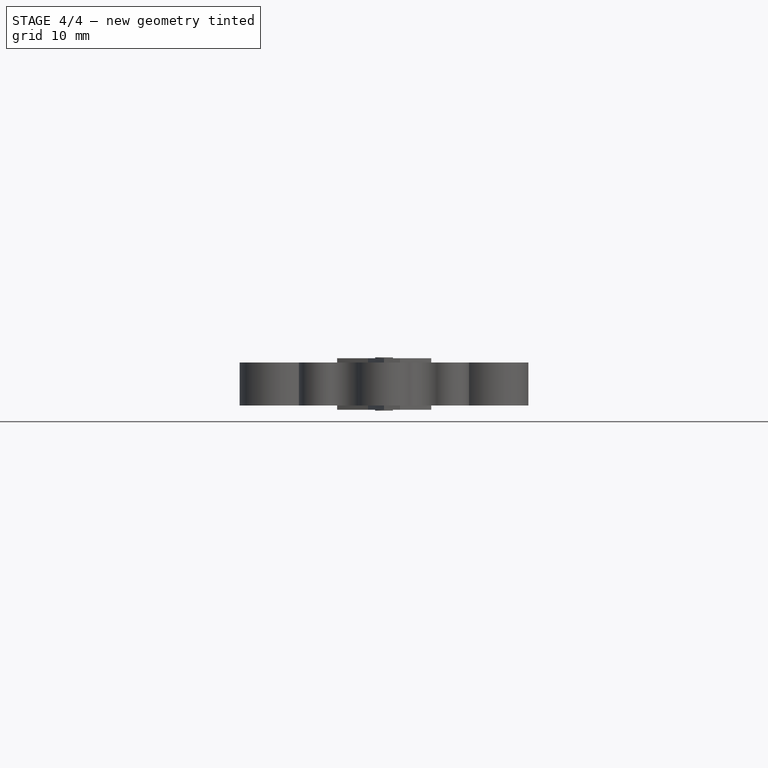
[diagram: stage 4 of 4 — front view after this stage's code; geometry added in this stage tinted green]
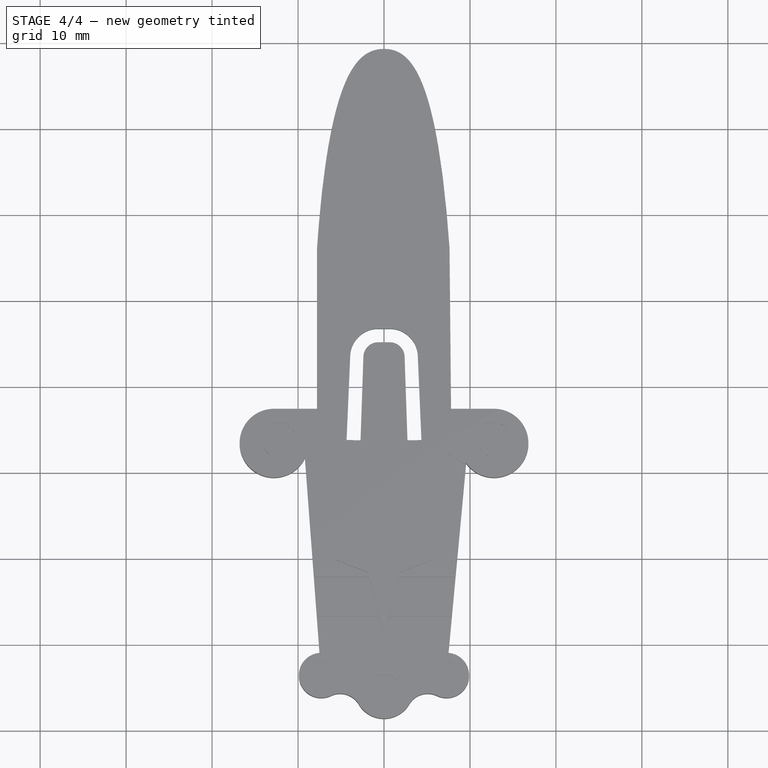
[diagram: stage 4 of 4 — top view after this stage's code; geometry added in this stage tinted green]
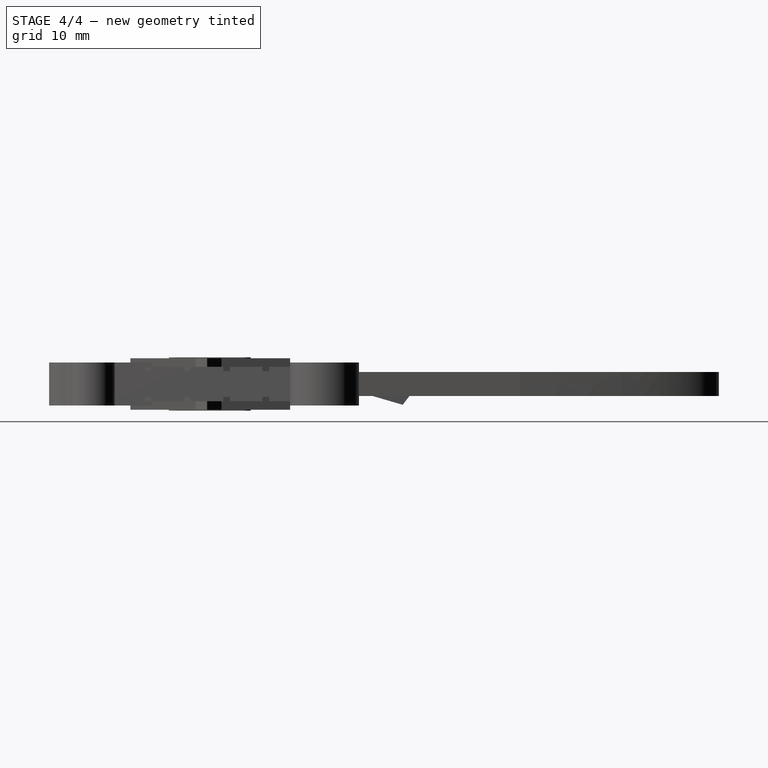
[diagram: stage 4 of 4 — right view after this stage's code; geometry added in this stage tinted green]
FEATURE [PartDesign::Pocket] Pocket005
  BaseFeature = -> Pocket004
  Length = 5
  Length2 = 100
  Midplane = true
  Profile = -> Sketch008
  Refine = true
  Type = 1
FEATURE [PartDesign::Pad] Pad003
  BaseFeature = -> Pocket005
  Length = 5.3
  Length2 = 100
  Midplane = true
  Profile = -> Sketch010
  Refine = true
  Type = 0
FEATURE [PartDesign::Pocket] Pocket006
  BaseFeature = -> Pad003
  Length = 5
  Length2 = 100
  Midplane = true
  Profile = -> Sketch011
  Refine = true
  Type = 1
FEATURE [Sketcher::SketchObject] Sketch012
  MapMode = 5
  Placement = pos=(0,0,2.5) rot=(0,0,1;0rad)
  Support = -> [Pocket006]
  sketch-geometry (5):
    g0: LineSegment StartX=-3.62641 StartY=-6.26641 StartZ=0 EndX=3.88673 EndY=-6.26641 EndZ=0
    g1: LineSegment StartX=3.88673 StartY=-6.26641 StartZ=0 EndX=2.60652 EndY=5.17505 EndZ=0
    g2: LineSegment StartX=2.60652 StartY=5.17505 StartZ=0 EndX=0 EndY=5.75859 EndZ=0
    g3: LineSegment StartX=0 StartY=5.75859 StartZ=0 EndX=-2.93715 EndY=4.88328 EndZ=0
    g4: LineSegment StartX=-2.93715 StartY=4.88328 StartZ=0 EndX=-3.62641 EndY=-6.26641 EndZ=0
  constraints (7):
    c: Horizontal(g0)
    c: Coincident(g0,g1)
    c: Coincident(g1,g2)
    c: PointOnObject(g2,g-2)
    c: Coincident(g2,g3)
    c: Coincident(g3,g4)
    c: Coincident(g4,g0)
FEATURE [PartDesign::Pocket] Pocket007
  BaseFeature = -> Pocket006
  Length = 5
  Length2 = 100
  Profile = -> Sketch012
  Refine = true
  Type = 0
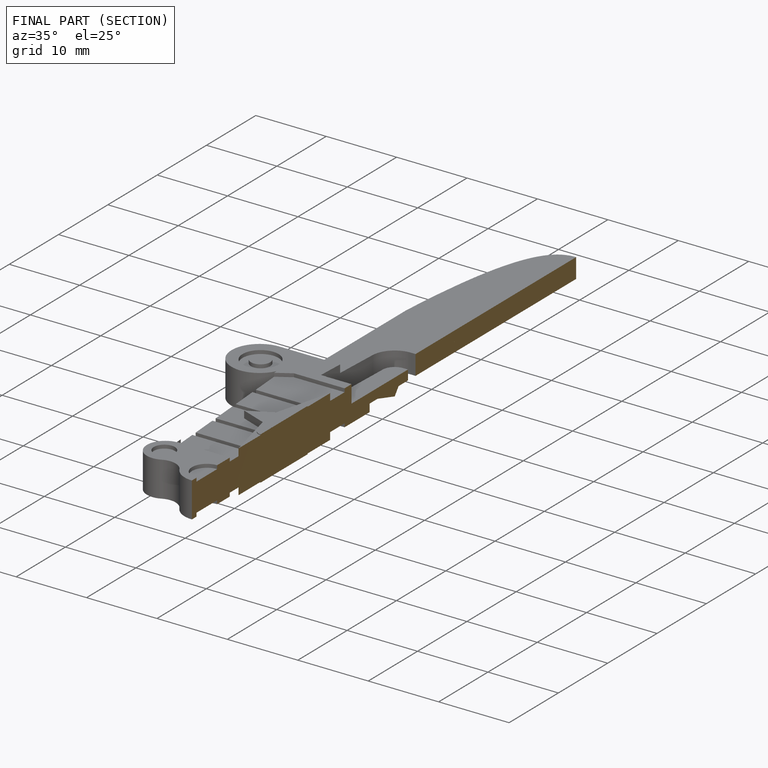
[diagram: finished part — half-section view (interior)]
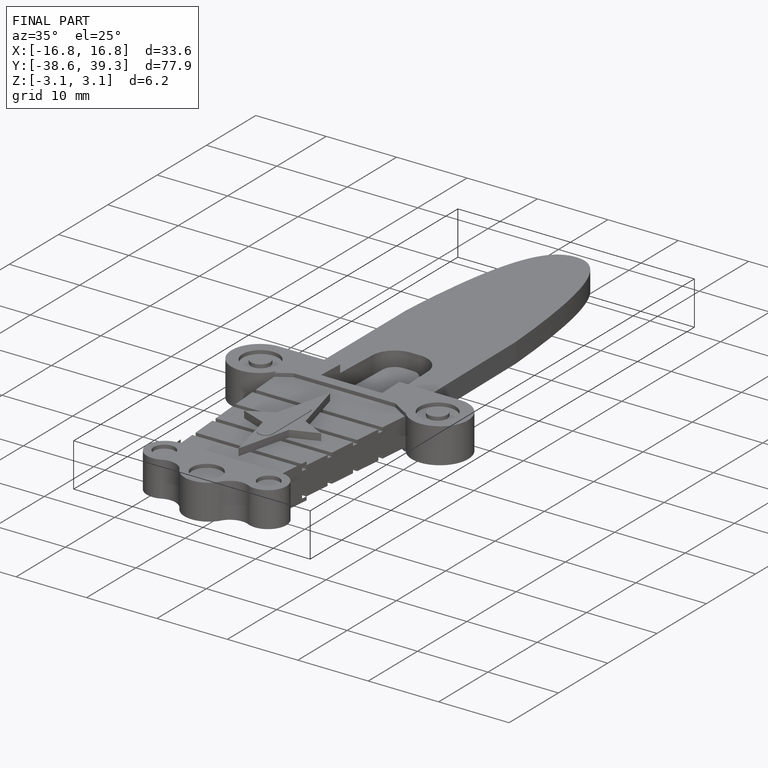
[diagram: finished part — iso view with bounding-box wireframe]
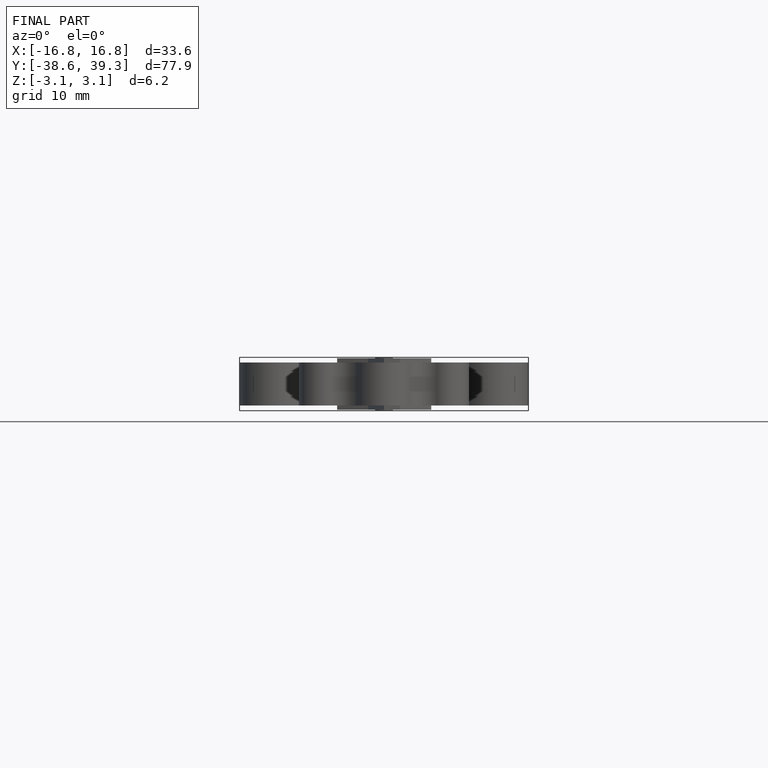
[diagram: finished part — front view with bounding-box wireframe]
